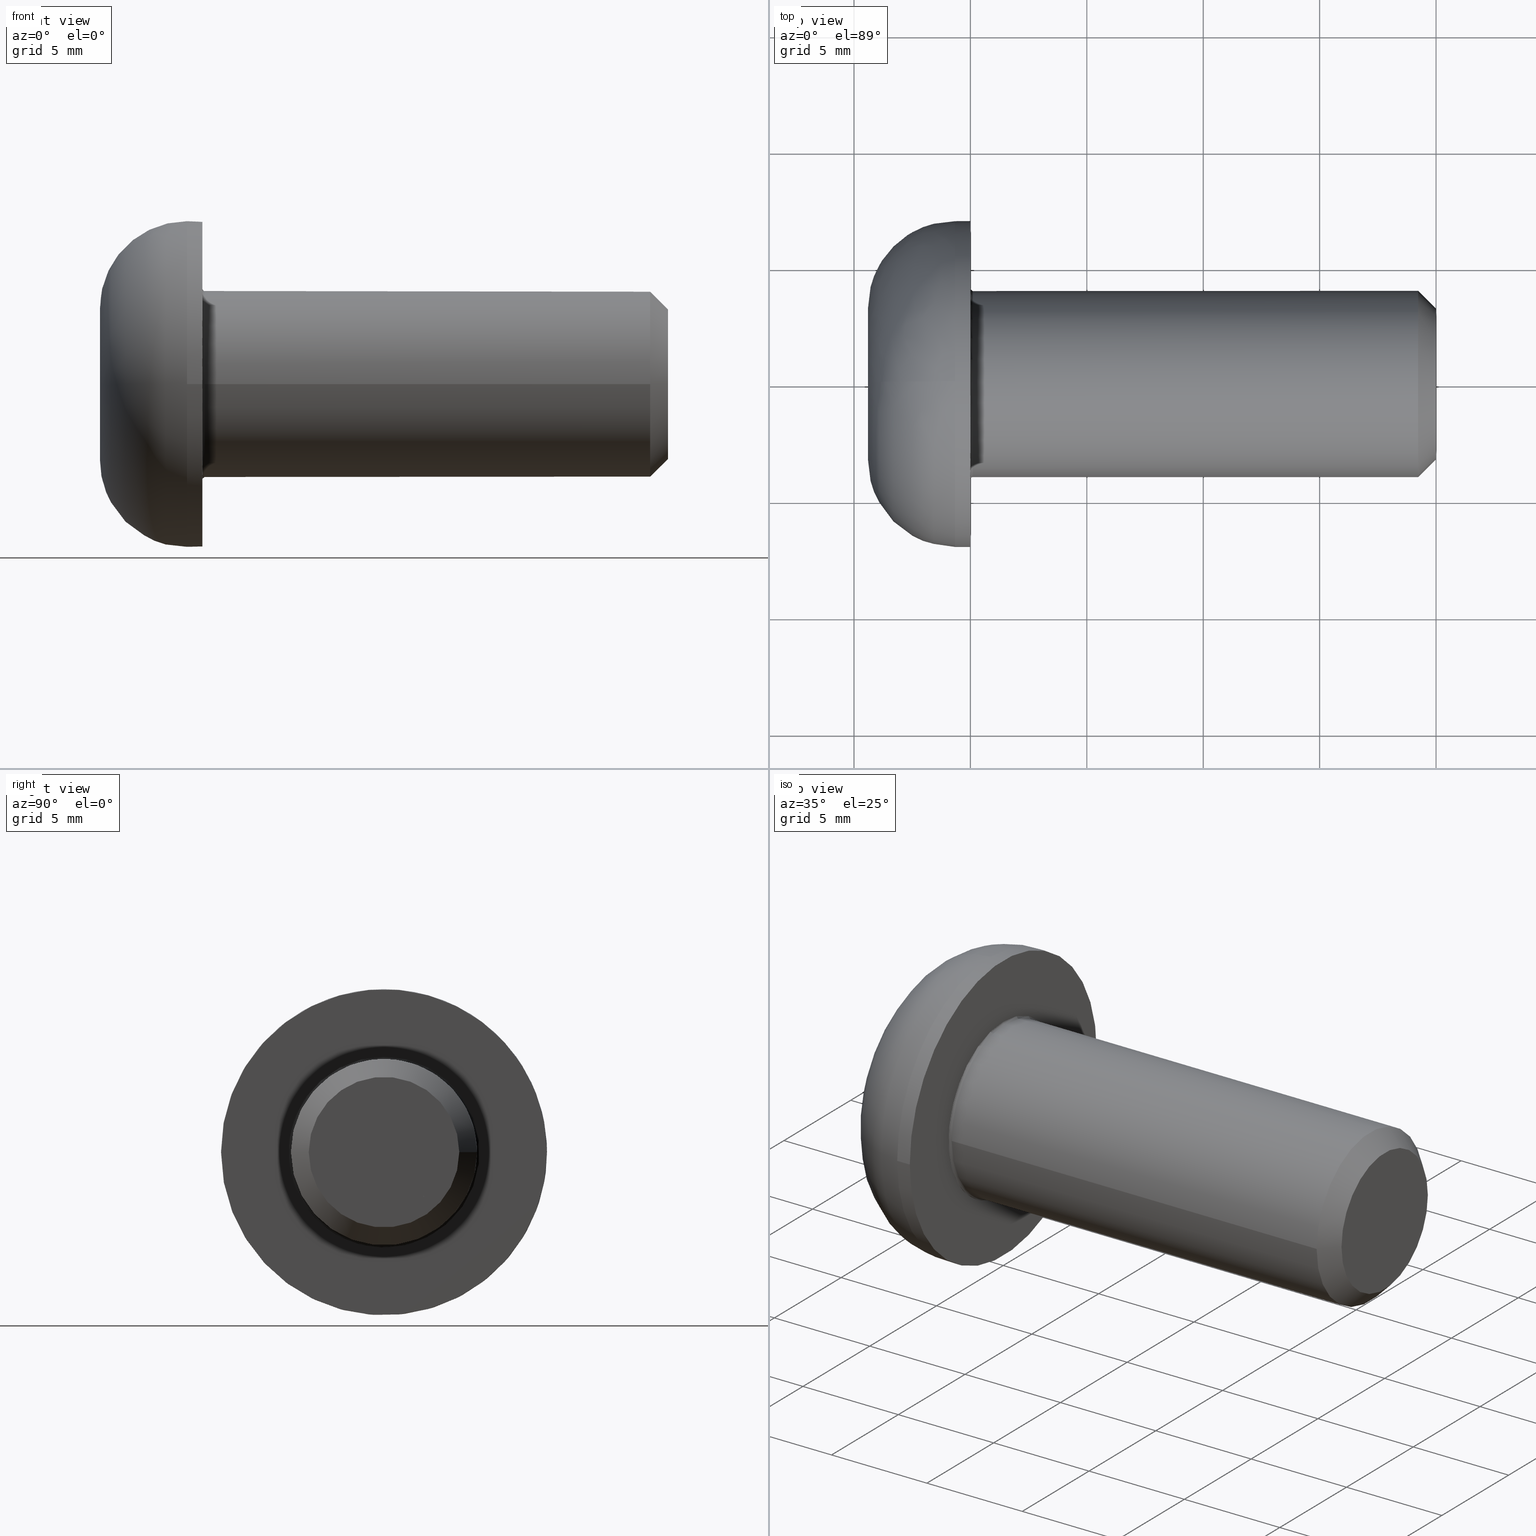
[diagram: canonical four-view strip — front | top / right | iso, engineering-drawing reading convention]
A machine part, canonical four-view strip (front | top / right | iso — engineering-drawing reading convention). The complete STEP part file that produces these views, byte-faithful:
ISO-10303-21;
HEADER;
/* Generated by software containing ST-Developer
 * from STEP Tools, Inc. (www.steptools.com) 
 */

FILE_DESCRIPTION(
/* description */ ('VITE TBEI 7380 10.9 8X20 ZN'),
/* implementation_level */ '2;1');

FILE_NAME(
/* name */ 
'C:\\Users\\tecnico7\\Desktop\\NUOVI DISEGNI 3D\\CVIBB0000048.stp',
/* time_stamp */ '2022-11-21T09:26:42+01:00',
/* author */ ('tecnico7'),
/* organization */ (''),
/* preprocessor_version */ 'ST-DEVELOPER v18.1',
/* originating_system */ 'Autodesk Inventor 2022',
/* authorisation */ '');

FILE_SCHEMA (('AUTOMOTIVE_DESIGN { 1 0 10303 214 3 1 1 }'));
ENDSEC;

DATA;
#10=MECHANICAL_DESIGN_GEOMETRIC_PRESENTATION_REPRESENTATION('',(#13),#496);
#11=SHAPE_REPRESENTATION_RELATIONSHIP('SRR','None',#503,#12);
#12=ADVANCED_BREP_SHAPE_REPRESENTATION('',(#14),#495);
#13=STYLED_ITEM('',(#512),#14);
#14=MANIFOLD_SOLID_BREP('Solid1',#259);
#15=(
BOUNDED_CURVE()
B_SPLINE_CURVE(2,(#453,#454,#455),.UNSPECIFIED.,.F.,.F.)
B_SPLINE_CURVE_WITH_KNOTS((3,3),(0.,0.292109034519483),.UNSPECIFIED.)
CURVE()
GEOMETRIC_REPRESENTATION_ITEM()
RATIONAL_B_SPLINE_CURVE((1.,1.15470053837925,1.))
REPRESENTATION_ITEM('')
);
#16=(
BOUNDED_CURVE()
B_SPLINE_CURVE(2,(#460,#461,#462),.UNSPECIFIED.,.F.,.F.)
B_SPLINE_CURVE_WITH_KNOTS((3,3),(0.,0.292109034519483),.UNSPECIFIED.)
CURVE()
GEOMETRIC_REPRESENTATION_ITEM()
RATIONAL_B_SPLINE_CURVE((1.,1.15470053837925,1.))
REPRESENTATION_ITEM('')
);
#17=(
BOUNDED_CURVE()
B_SPLINE_CURVE(2,(#466,#467,#468),.UNSPECIFIED.,.F.,.F.)
B_SPLINE_CURVE_WITH_KNOTS((3,3),(0.,0.292109034519483),.UNSPECIFIED.)
CURVE()
GEOMETRIC_REPRESENTATION_ITEM()
RATIONAL_B_SPLINE_CURVE((1.,1.15470053837925,1.))
REPRESENTATION_ITEM('')
);
#18=(
BOUNDED_CURVE()
B_SPLINE_CURVE(2,(#472,#473,#474),.UNSPECIFIED.,.F.,.F.)
B_SPLINE_CURVE_WITH_KNOTS((3,3),(0.,0.292109034519483),.UNSPECIFIED.)
CURVE()
GEOMETRIC_REPRESENTATION_ITEM()
RATIONAL_B_SPLINE_CURVE((1.,1.15470053837926,1.))
REPRESENTATION_ITEM('')
);
#19=(
BOUNDED_CURVE()
B_SPLINE_CURVE(2,(#478,#479,#480),.UNSPECIFIED.,.F.,.F.)
B_SPLINE_CURVE_WITH_KNOTS((3,3),(0.,0.146054517259742),.UNSPECIFIED.)
CURVE()
GEOMETRIC_REPRESENTATION_ITEM()
RATIONAL_B_SPLINE_CURVE((1.,1.07735026918963,1.07735026918963))
REPRESENTATION_ITEM('')
);
#20=(
BOUNDED_CURVE()
B_SPLINE_CURVE(2,(#483,#484,#485),.UNSPECIFIED.,.F.,.F.)
B_SPLINE_CURVE_WITH_KNOTS((3,3),(0.146054517259742,0.292109034519483),
 .UNSPECIFIED.)
CURVE()
GEOMETRIC_REPRESENTATION_ITEM()
RATIONAL_B_SPLINE_CURVE((1.07735026918963,1.07735026918963,1.))
REPRESENTATION_ITEM('')
);
#21=(
BOUNDED_CURVE()
B_SPLINE_CURVE(2,(#487,#488,#489),.UNSPECIFIED.,.F.,.F.)
B_SPLINE_CURVE_WITH_KNOTS((3,3),(0.,0.292109034519483),.UNSPECIFIED.)
CURVE()
GEOMETRIC_REPRESENTATION_ITEM()
RATIONAL_B_SPLINE_CURVE((1.,1.15470053837925,1.))
REPRESENTATION_ITEM('')
);
#22=(
BOUNDED_SURFACE()
B_SPLINE_SURFACE(2,2,((#401,#402,#403,#404,#405,#406,#407,#408,#409),(#410,
#411,#412,#413,#414,#415,#416,#417,#418),(#419,#420,#421,#422,#423,#424,
#425,#426,#427)),.UNSPECIFIED.,.F.,.T.,.F.)
B_SPLINE_SURFACE_WITH_KNOTS((3,3),(3,2,2,2,3),(-1.5707963267949,1.20300443014027E-17),
(-3.14159265358979,-1.5707963267949,0.,1.5707963267949,3.14159265358979),
 .UNSPECIFIED.)
GEOMETRIC_REPRESENTATION_ITEM()
RATIONAL_B_SPLINE_SURFACE(((1.,0.707106781186548,1.,0.707106781186548,1.,
0.707106781186548,1.,0.707106781186548,1.),(0.707106781186548,0.5,0.707106781186548,
0.5,0.707106781186548,0.5,0.707106781186548,0.5,0.707106781186548),(1.,
0.707106781186548,1.,0.707106781186548,1.,0.707106781186548,1.,0.707106781186548,
1.)))
REPRESENTATION_ITEM('')
SURFACE()
);
#23=CONICAL_SURFACE('',#292,3.61659375,0.785398163397448);
#24=CONICAL_SURFACE('',#307,1.44337567297406,1.0471975511966);
#25=FACE_BOUND('',#88,.T.);
#26=FACE_BOUND('',#93,.T.);
#27=PLANE('',#290);
#28=PLANE('',#294);
#29=PLANE('',#299);
#30=PLANE('',#301);
#31=PLANE('',#302);
#32=PLANE('',#303);
#33=PLANE('',#304);
#34=PLANE('',#305);
#35=PLANE('',#306);
#36=LINE('',#392,#52);
#37=LINE('',#399,#53);
#38=LINE('',#438,#54);
#39=LINE('',#440,#55);
#40=LINE('',#442,#56);
#41=LINE('',#444,#57);
#42=LINE('',#446,#58);
#43=LINE('',#447,#59);
#44=LINE('',#449,#60);
#45=LINE('',#456,#61);
#46=LINE('',#457,#62);
#47=LINE('',#463,#63);
#48=LINE('',#469,#64);
#49=LINE('',#475,#65);
#50=LINE('',#482,#66);
#51=LINE('',#492,#67);
#52=VECTOR('',#326,4.);
#53=VECTOR('',#335,3.61659375);
#54=VECTOR('',#348,10.);
#55=VECTOR('',#349,10.);
#56=VECTOR('',#350,10.);
#57=VECTOR('',#351,10.);
#58=VECTOR('',#352,10.);
#59=VECTOR('',#353,10.);
#60=VECTOR('',#356,7.);
#61=VECTOR('',#359,10.);
#62=VECTOR('',#360,10.);
#63=VECTOR('',#363,10.);
#64=VECTOR('',#366,10.);
#65=VECTOR('',#369,10.);
#66=VECTOR('',#372,10.);
#67=VECTOR('',#377,1.44337567297406);
#68=CYLINDRICAL_SURFACE('',#287,4.);
#69=CYLINDRICAL_SURFACE('',#300,7.);
#70=FACE_OUTER_BOUND('',#85,.T.);
#71=FACE_OUTER_BOUND('',#86,.T.);
#72=FACE_OUTER_BOUND('',#87,.T.);
#73=FACE_OUTER_BOUND('',#89,.T.);
#74=FACE_OUTER_BOUND('',#90,.T.);
#75=FACE_OUTER_BOUND('',#91,.T.);
#76=FACE_OUTER_BOUND('',#92,.T.);
#77=FACE_OUTER_BOUND('',#94,.T.);
#78=FACE_OUTER_BOUND('',#95,.T.);
#79=FACE_OUTER_BOUND('',#96,.T.);
#80=FACE_OUTER_BOUND('',#97,.T.);
#81=FACE_OUTER_BOUND('',#98,.T.);
#82=FACE_OUTER_BOUND('',#99,.T.);
#83=FACE_OUTER_BOUND('',#100,.T.);
#84=FACE_OUTER_BOUND('',#101,.T.);
#85=EDGE_LOOP('',(#173,#174,#175,#176,#177));
#86=EDGE_LOOP('',(#178,#179,#180,#181,#182,#183));
#87=EDGE_LOOP('',(#184));
#88=EDGE_LOOP('',(#185));
#89=EDGE_LOOP('',(#186,#187,#188,#189,#190));
#90=EDGE_LOOP('',(#191));
#91=EDGE_LOOP('',(#192,#193,#194,#195,#196));
#92=EDGE_LOOP('',(#197));
#93=EDGE_LOOP('',(#198,#199,#200,#201,#202,#203));
#94=EDGE_LOOP('',(#204,#205,#206,#207,#208));
#95=EDGE_LOOP('',(#209,#210,#211,#212));
#96=EDGE_LOOP('',(#213,#214,#215,#216));
#97=EDGE_LOOP('',(#217,#218,#219,#220));
#98=EDGE_LOOP('',(#221,#222,#223,#224));
#99=EDGE_LOOP('',(#225,#226,#227,#228,#229));
#100=EDGE_LOOP('',(#230,#231,#232,#233));
#101=EDGE_LOOP('',(#234,#235,#236,#237,#238,#239,#240,#241,#242));
#102=CIRCLE('',#283,4.1);
#103=CIRCLE('',#284,0.1);
#104=CIRCLE('',#285,4.);
#105=CIRCLE('',#286,4.);
#106=CIRCLE('',#288,4.);
#107=CIRCLE('',#289,4.);
#108=CIRCLE('',#291,7.);
#109=CIRCLE('',#293,3.2331875);
#110=CIRCLE('',#295,7.);
#111=CIRCLE('',#296,7.);
#112=CIRCLE('',#297,3.74);
#113=CIRCLE('',#298,3.26);
#114=VERTEX_POINT('',#380);
#115=VERTEX_POINT('',#382);
#116=VERTEX_POINT('',#384);
#117=VERTEX_POINT('',#388);
#118=VERTEX_POINT('',#389);
#119=VERTEX_POINT('',#394);
#120=VERTEX_POINT('',#397);
#121=VERTEX_POINT('',#428);
#122=VERTEX_POINT('',#429);
#123=VERTEX_POINT('',#432);
#124=VERTEX_POINT('',#436);
#125=VERTEX_POINT('',#437);
#126=VERTEX_POINT('',#439);
#127=VERTEX_POINT('',#441);
#128=VERTEX_POINT('',#443);
#129=VERTEX_POINT('',#445);
#130=VERTEX_POINT('',#451);
#131=VERTEX_POINT('',#452);
#132=VERTEX_POINT('',#459);
#133=VERTEX_POINT('',#465);
#134=VERTEX_POINT('',#471);
#135=VERTEX_POINT('',#477);
#136=VERTEX_POINT('',#481);
#137=VERTEX_POINT('',#491);
#138=EDGE_CURVE('',#114,#114,#102,.T.);
#139=EDGE_CURVE('',#114,#115,#103,.T.);
#140=EDGE_CURVE('',#115,#116,#104,.T.);
#141=EDGE_CURVE('',#116,#115,#105,.T.);
#142=EDGE_CURVE('',#117,#118,#106,.T.);
#143=EDGE_CURVE('',#118,#117,#107,.T.);
#144=EDGE_CURVE('',#118,#116,#36,.T.);
#145=EDGE_CURVE('',#119,#119,#108,.T.);
#146=EDGE_CURVE('',#120,#120,#109,.T.);
#147=EDGE_CURVE('',#120,#117,#37,.T.);
#148=EDGE_CURVE('',#121,#122,#110,.T.);
#149=EDGE_CURVE('',#122,#121,#111,.T.);
#150=EDGE_CURVE('',#121,#123,#112,.T.);
#151=EDGE_CURVE('',#123,#123,#113,.T.);
#152=EDGE_CURVE('',#124,#125,#38,.T.);
#153=EDGE_CURVE('',#125,#126,#39,.T.);
#154=EDGE_CURVE('',#126,#127,#40,.T.);
#155=EDGE_CURVE('',#127,#128,#41,.T.);
#156=EDGE_CURVE('',#128,#129,#42,.T.);
#157=EDGE_CURVE('',#129,#124,#43,.T.);
#158=EDGE_CURVE('',#119,#122,#44,.T.);
#159=EDGE_CURVE('',#130,#131,#15,.T.);
#160=EDGE_CURVE('',#130,#129,#45,.T.);
#161=EDGE_CURVE('',#131,#128,#46,.T.);
#162=EDGE_CURVE('',#132,#130,#16,.T.);
#163=EDGE_CURVE('',#132,#124,#47,.T.);
#164=EDGE_CURVE('',#133,#132,#17,.T.);
#165=EDGE_CURVE('',#133,#125,#48,.T.);
#166=EDGE_CURVE('',#134,#133,#18,.T.);
#167=EDGE_CURVE('',#126,#134,#49,.T.);
#168=EDGE_CURVE('',#131,#135,#19,.T.);
#169=EDGE_CURVE('',#136,#127,#50,.T.);
#170=EDGE_CURVE('',#135,#136,#20,.T.);
#171=EDGE_CURVE('',#136,#134,#21,.T.);
#172=EDGE_CURVE('',#137,#135,#51,.T.);
#173=ORIENTED_EDGE('',*,*,#138,.T.);
#174=ORIENTED_EDGE('',*,*,#139,.T.);
#175=ORIENTED_EDGE('',*,*,#140,.T.);
#176=ORIENTED_EDGE('',*,*,#141,.T.);
#177=ORIENTED_EDGE('',*,*,#139,.F.);
#178=ORIENTED_EDGE('',*,*,#142,.F.);
#179=ORIENTED_EDGE('',*,*,#143,.F.);
#180=ORIENTED_EDGE('',*,*,#144,.T.);
#181=ORIENTED_EDGE('',*,*,#140,.F.);
#182=ORIENTED_EDGE('',*,*,#141,.F.);
#183=ORIENTED_EDGE('',*,*,#144,.F.);
#184=ORIENTED_EDGE('',*,*,#145,.T.);
#185=ORIENTED_EDGE('',*,*,#138,.F.);
#186=ORIENTED_EDGE('',*,*,#146,.T.);
#187=ORIENTED_EDGE('',*,*,#147,.T.);
#188=ORIENTED_EDGE('',*,*,#142,.T.);
#189=ORIENTED_EDGE('',*,*,#143,.T.);
#190=ORIENTED_EDGE('',*,*,#147,.F.);
#191=ORIENTED_EDGE('',*,*,#146,.F.);
#192=ORIENTED_EDGE('',*,*,#148,.T.);
#193=ORIENTED_EDGE('',*,*,#149,.T.);
#194=ORIENTED_EDGE('',*,*,#150,.T.);
#195=ORIENTED_EDGE('',*,*,#151,.T.);
#196=ORIENTED_EDGE('',*,*,#150,.F.);
#197=ORIENTED_EDGE('',*,*,#151,.F.);
#198=ORIENTED_EDGE('',*,*,#152,.T.);
#199=ORIENTED_EDGE('',*,*,#153,.T.);
#200=ORIENTED_EDGE('',*,*,#154,.T.);
#201=ORIENTED_EDGE('',*,*,#155,.T.);
#202=ORIENTED_EDGE('',*,*,#156,.T.);
#203=ORIENTED_EDGE('',*,*,#157,.T.);
#204=ORIENTED_EDGE('',*,*,#145,.F.);
#205=ORIENTED_EDGE('',*,*,#158,.T.);
#206=ORIENTED_EDGE('',*,*,#148,.F.);
#207=ORIENTED_EDGE('',*,*,#149,.F.);
#208=ORIENTED_EDGE('',*,*,#158,.F.);
#209=ORIENTED_EDGE('',*,*,#159,.F.);
#210=ORIENTED_EDGE('',*,*,#160,.T.);
#211=ORIENTED_EDGE('',*,*,#156,.F.);
#212=ORIENTED_EDGE('',*,*,#161,.F.);
#213=ORIENTED_EDGE('',*,*,#162,.F.);
#214=ORIENTED_EDGE('',*,*,#163,.T.);
#215=ORIENTED_EDGE('',*,*,#157,.F.);
#216=ORIENTED_EDGE('',*,*,#160,.F.);
#217=ORIENTED_EDGE('',*,*,#164,.F.);
#218=ORIENTED_EDGE('',*,*,#165,.T.);
#219=ORIENTED_EDGE('',*,*,#152,.F.);
#220=ORIENTED_EDGE('',*,*,#163,.F.);
#221=ORIENTED_EDGE('',*,*,#166,.F.);
#222=ORIENTED_EDGE('',*,*,#167,.F.);
#223=ORIENTED_EDGE('',*,*,#153,.F.);
#224=ORIENTED_EDGE('',*,*,#165,.F.);
#225=ORIENTED_EDGE('',*,*,#168,.F.);
#226=ORIENTED_EDGE('',*,*,#161,.T.);
#227=ORIENTED_EDGE('',*,*,#155,.F.);
#228=ORIENTED_EDGE('',*,*,#169,.F.);
#229=ORIENTED_EDGE('',*,*,#170,.F.);
#230=ORIENTED_EDGE('',*,*,#171,.F.);
#231=ORIENTED_EDGE('',*,*,#169,.T.);
#232=ORIENTED_EDGE('',*,*,#154,.F.);
#233=ORIENTED_EDGE('',*,*,#167,.T.);
#234=ORIENTED_EDGE('',*,*,#172,.T.);
#235=ORIENTED_EDGE('',*,*,#170,.T.);
#236=ORIENTED_EDGE('',*,*,#171,.T.);
#237=ORIENTED_EDGE('',*,*,#166,.T.);
#238=ORIENTED_EDGE('',*,*,#164,.T.);
#239=ORIENTED_EDGE('',*,*,#162,.T.);
#240=ORIENTED_EDGE('',*,*,#159,.T.);
#241=ORIENTED_EDGE('',*,*,#168,.T.);
#242=ORIENTED_EDGE('',*,*,#172,.F.);
#243=TOROIDAL_SURFACE('',#282,4.1,0.1);
#244=ADVANCED_FACE('',(#70),#243,.F.);
#245=ADVANCED_FACE('',(#71),#68,.T.);
#246=ADVANCED_FACE('',(#72,#25),#27,.T.);
#247=ADVANCED_FACE('',(#73),#23,.T.);
#248=ADVANCED_FACE('',(#74),#28,.T.);
#249=ADVANCED_FACE('',(#75),#22,.F.);
#250=ADVANCED_FACE('',(#76,#26),#29,.T.);
#251=ADVANCED_FACE('',(#77),#69,.T.);
#252=ADVANCED_FACE('',(#78),#30,.F.);
#253=ADVANCED_FACE('',(#79),#31,.F.);
#254=ADVANCED_FACE('',(#80),#32,.F.);
#255=ADVANCED_FACE('',(#81),#33,.F.);
#256=ADVANCED_FACE('',(#82),#34,.F.);
#257=ADVANCED_FACE('',(#83),#35,.F.);
#258=ADVANCED_FACE('',(#84),#24,.F.);
#259=CLOSED_SHELL('',(#244,#245,#246,#247,#248,#249,#250,#251,#252,#253,
#254,#255,#256,#257,#258));
#260=DERIVED_UNIT_ELEMENT(#263,1.);
#261=DERIVED_UNIT_ELEMENT(#498,-3.);
#262=DIMENSIONAL_EXPONENTS(1.,0.,0.,0.,0.,0.,0.);
#263=(
CONVERSION_BASED_UNIT('gram',#265)
MASS_UNIT()
NAMED_UNIT(#262)
);
#264=(
MASS_UNIT()
NAMED_UNIT(*)
SI_UNIT(.KILO.,.GRAM.)
);
#265=MASS_MEASURE_WITH_UNIT(MASS_MEASURE(0.001),#264);
#266=DERIVED_UNIT((#260,#261));
#267=MEASURE_REPRESENTATION_ITEM('density measure',
POSITIVE_RATIO_MEASURE(6.E-5),#266);
#268=PROPERTY_DEFINITION_REPRESENTATION(#273,#270);
#269=PROPERTY_DEFINITION_REPRESENTATION(#274,#271);
#270=REPRESENTATION('material name',(#272),#495);
#271=REPRESENTATION('density',(#267),#495);
#272=DESCRIPTIVE_REPRESENTATION_ITEM('Acciaio, Dolce','Acciaio, Dolce');
#273=PROPERTY_DEFINITION('material property','material name',#505);
#274=PROPERTY_DEFINITION('material property','density of part',#505);
#275=DATE_TIME_ROLE('creation_date');
#276=APPLIED_DATE_AND_TIME_ASSIGNMENT(#277,#275,(#505));
#277=DATE_AND_TIME(#278,#279);
#278=CALENDAR_DATE(2015,5,3);
#279=LOCAL_TIME(0,0,0.,#280);
#280=COORDINATED_UNIVERSAL_TIME_OFFSET(0,0,.BEHIND.);
#281=AXIS2_PLACEMENT_3D('placement',#378,#308,#309);
#282=AXIS2_PLACEMENT_3D('',#379,#310,#311);
#283=AXIS2_PLACEMENT_3D('',#381,#312,#313);
#284=AXIS2_PLACEMENT_3D('',#383,#314,#315);
#285=AXIS2_PLACEMENT_3D('',#385,#316,#317);
#286=AXIS2_PLACEMENT_3D('',#386,#318,#319);
#287=AXIS2_PLACEMENT_3D('',#387,#320,#321);
#288=AXIS2_PLACEMENT_3D('',#390,#322,#323);
#289=AXIS2_PLACEMENT_3D('',#391,#324,#325);
#290=AXIS2_PLACEMENT_3D('',#393,#327,#328);
#291=AXIS2_PLACEMENT_3D('',#395,#329,#330);
#292=AXIS2_PLACEMENT_3D('',#396,#331,#332);
#293=AXIS2_PLACEMENT_3D('',#398,#333,#334);
#294=AXIS2_PLACEMENT_3D('',#400,#336,#337);
#295=AXIS2_PLACEMENT_3D('',#430,#338,#339);
#296=AXIS2_PLACEMENT_3D('',#431,#340,#341);
#297=AXIS2_PLACEMENT_3D('',#433,#342,#343);
#298=AXIS2_PLACEMENT_3D('',#434,#344,#345);
#299=AXIS2_PLACEMENT_3D('',#435,#346,#347);
#300=AXIS2_PLACEMENT_3D('',#448,#354,#355);
#301=AXIS2_PLACEMENT_3D('',#450,#357,#358);
#302=AXIS2_PLACEMENT_3D('',#458,#361,#362);
#303=AXIS2_PLACEMENT_3D('',#464,#364,#365);
#304=AXIS2_PLACEMENT_3D('',#470,#367,#368);
#305=AXIS2_PLACEMENT_3D('',#476,#370,#371);
#306=AXIS2_PLACEMENT_3D('',#486,#373,#374);
#307=AXIS2_PLACEMENT_3D('',#490,#375,#376);
#308=DIRECTION('axis',(0.,0.,1.));
#309=DIRECTION('refdir',(1.,0.,0.));
#310=DIRECTION('center_axis',(1.,5.98373334115326E-18,0.));
#311=DIRECTION('ref_axis',(0.,0.,-1.));
#312=DIRECTION('center_axis',(1.,5.98373334115326E-18,0.));
#313=DIRECTION('ref_axis',(5.98373334115326E-18,-1.,1.22464679914735E-16));
#314=DIRECTION('center_axis',(5.98373334115326E-18,-1.,-1.22464679914735E-16));
#315=DIRECTION('ref_axis',(0.,-1.22464679914735E-16,1.));
#316=DIRECTION('center_axis',(-1.,-5.98373334115326E-18,0.));
#317=DIRECTION('ref_axis',(4.33680868994202E-18,-1.,1.22464679914735E-16));
#318=DIRECTION('center_axis',(-1.,-5.98373334115326E-18,0.));
#319=DIRECTION('ref_axis',(4.33680868994202E-18,-1.,1.22464679914735E-16));
#320=DIRECTION('center_axis',(1.,5.98373334115326E-18,0.));
#321=DIRECTION('ref_axis',(0.,1.,0.));
#322=DIRECTION('center_axis',(1.,5.98373334115326E-18,0.));
#323=DIRECTION('ref_axis',(0.,-1.,0.));
#324=DIRECTION('center_axis',(1.,5.98373334115326E-18,0.));
#325=DIRECTION('ref_axis',(0.,-1.,0.));
#326=DIRECTION('',(-1.,-5.98373334115326E-18,0.));
#327=DIRECTION('center_axis',(1.,5.98373334115326E-18,0.));
#328=DIRECTION('ref_axis',(0.,0.,-1.));
#329=DIRECTION('center_axis',(1.,5.98373334115326E-18,0.));
#330=DIRECTION('ref_axis',(0.,1.,0.));
#331=DIRECTION('center_axis',(-1.,-5.98373334115326E-18,0.));
#332=DIRECTION('ref_axis',(2.67468966371326E-18,-1.,0.));
#333=DIRECTION('center_axis',(-1.,-5.98373334115326E-18,0.));
#334=DIRECTION('ref_axis',(5.98373334115326E-18,-1.,0.));
#335=DIRECTION('',(-0.707106781186548,0.707106781186547,8.65956056235493E-17));
#336=DIRECTION('center_axis',(1.,5.98373334115326E-18,0.));
#337=DIRECTION('ref_axis',(0.,0.,-1.));
#338=DIRECTION('center_axis',(-1.,-5.98373334115326E-18,0.));
#339=DIRECTION('ref_axis',(0.,-1.,1.22464679914735E-16));
#340=DIRECTION('center_axis',(-1.,-5.98373334115326E-18,0.));
#341=DIRECTION('ref_axis',(0.,-1.,1.22464679914735E-16));
#342=DIRECTION('center_axis',(5.98373334115326E-18,-1.,-1.22464679914735E-16));
#343=DIRECTION('ref_axis',(0.,-1.22464679914735E-16,1.));
#344=DIRECTION('center_axis',(1.,5.98373334115326E-18,0.));
#345=DIRECTION('ref_axis',(5.98373334115326E-18,-1.,1.22464679914735E-16));
#346=DIRECTION('center_axis',(-1.,-5.98373334115326E-18,0.));
#347=DIRECTION('ref_axis',(0.,0.,1.));
#348=DIRECTION('',(-5.75324797015349E-33,9.61481343191782E-16,1.));
#349=DIRECTION('',(5.18206508291066E-18,-0.866025403784438,0.5));
#350=DIRECTION('',(5.18206508291066E-18,-0.866025403784439,-0.5));
#351=DIRECTION('',(5.75324797015348E-34,-9.61481343191782E-17,-1.));
#352=DIRECTION('',(-5.18206508291066E-18,0.866025403784439,-0.5));
#353=DIRECTION('',(-5.18206508291066E-18,0.866025403784439,0.5));
#354=DIRECTION('center_axis',(1.,5.98373334115326E-18,0.));
#355=DIRECTION('ref_axis',(0.,1.,0.));
#356=DIRECTION('',(-1.,-5.98373334115326E-18,0.));
#357=DIRECTION('center_axis',(2.99186667057663E-18,-0.5,-0.866025403784439));
#358=DIRECTION('ref_axis',(-1.,0.,-3.45471005527377E-18));
#359=DIRECTION('',(-1.,-5.98373334115326E-18,0.));
#360=DIRECTION('',(-1.,-5.98373334115326E-18,0.));
#361=DIRECTION('center_axis',(-2.99186667057663E-18,0.5,-0.866025403784439));
#362=DIRECTION('ref_axis',(-1.,0.,3.45471005527377E-18));
#363=DIRECTION('',(-1.,-5.98373334115326E-18,0.));
#364=DIRECTION('center_axis',(-5.98373334115326E-18,1.,-9.61481343191782E-16));
#365=DIRECTION('ref_axis',(0.,9.61481343191782E-16,1.));
#366=DIRECTION('',(-1.,-5.98373334115326E-18,0.));
#367=DIRECTION('center_axis',(-2.99186667057663E-18,0.5,0.866025403784438));
#368=DIRECTION('ref_axis',(1.,0.,3.45471005527378E-18));
#369=DIRECTION('',(1.,5.98373334115326E-18,0.));
#370=DIRECTION('center_axis',(5.98373334115326E-18,-1.,9.61481343191782E-17));
#371=DIRECTION('ref_axis',(0.,-9.61481343191782E-17,-1.));
#372=DIRECTION('',(-1.,-5.98373334115326E-18,0.));
#373=DIRECTION('center_axis',(2.99186667057663E-18,-0.5,0.866025403784439));
#374=DIRECTION('ref_axis',(1.,0.,-3.45471005527377E-18));
#375=DIRECTION('center_axis',(-1.,-5.98373334115326E-18,0.));
#376=DIRECTION('ref_axis',(0.,1.,0.));
#377=DIRECTION('',(-0.499999999999999,-0.866025403784439,-1.06057523872491E-16));
#378=CARTESIAN_POINT('',(0.,0.,0.));
#379=CARTESIAN_POINT('Origin',(0.100000000000002,-1.1907629348895E-16,0.));
#380=CARTESIAN_POINT('',(2.25514051876985E-15,-6.2177985447348E-16,4.1));
#381=CARTESIAN_POINT('Origin',(2.25514051876985E-15,-1.19674666823065E-16,
0.));
#382=CARTESIAN_POINT('',(0.100000000000002,-6.08935013147891E-16,4.));
#383=CARTESIAN_POINT('Origin',(0.100000000000002,-6.21181481139365E-16,
4.1));
#384=CARTESIAN_POINT('',(0.100000000000002,-4.,-4.89858719658941E-16));
#385=CARTESIAN_POINT('Origin',(0.100000000000002,-1.1907629348895E-16,0.));
#386=CARTESIAN_POINT('Origin',(0.100000000000002,-1.1907629348895E-16,0.));
#387=CARTESIAN_POINT('Origin',(15.25,-2.8422733370478E-17,0.));
#388=CARTESIAN_POINT('',(19.2331875,4.,4.89858719658941E-16));
#389=CARTESIAN_POINT('',(19.2331875,-4.,-4.89858719658941E-16));
#390=CARTESIAN_POINT('Origin',(19.2331875,-4.58840152266308E-18,0.));
#391=CARTESIAN_POINT('Origin',(19.2331875,-4.58840152266308E-18,0.));
#392=CARTESIAN_POINT('',(15.25,-4.,-4.89858719658941E-16));
#393=CARTESIAN_POINT('Origin',(2.22044604925031E-15,5.5,0.));
#394=CARTESIAN_POINT('',(2.22044604925031E-15,-7.,-8.57252759403147E-16));
#395=CARTESIAN_POINT('Origin',(2.22044604925031E-15,-1.19674666823065E-16,
0.));
#396=CARTESIAN_POINT('Origin',(19.61659375,-2.29420076133154E-18,0.));
#397=CARTESIAN_POINT('',(20.,3.2331875,-3.95951272291823E-16));
#398=CARTESIAN_POINT('Origin',(20.,2.88889491658085E-33,0.));
#399=CARTESIAN_POINT('',(19.61659375,3.61659375,4.42904995975382E-16));
#400=CARTESIAN_POINT('Origin',(20.,2.,0.));
#401=CARTESIAN_POINT('Ctrl Pts',(-4.4,-1.46003093524139E-16,3.26));
#402=CARTESIAN_POINT('Ctrl Pts',(-4.4,-3.26,3.26));
#403=CARTESIAN_POINT('Ctrl Pts',(-4.4,-3.26,0.));
#404=CARTESIAN_POINT('Ctrl Pts',(-4.4,-3.26,-3.26));
#405=CARTESIAN_POINT('Ctrl Pts',(-4.4,-1.46003093524139E-16,-3.26));
#406=CARTESIAN_POINT('Ctrl Pts',(-4.4,3.26,-3.26));
#407=CARTESIAN_POINT('Ctrl Pts',(-4.4,3.26,0.));
#408=CARTESIAN_POINT('Ctrl Pts',(-4.4,3.26,3.26));
#409=CARTESIAN_POINT('Ctrl Pts',(-4.4,-1.46003093524139E-16,3.26));
#410=CARTESIAN_POINT('Ctrl Pts',(-4.4,-1.46003093524139E-16,7.));
#411=CARTESIAN_POINT('Ctrl Pts',(-4.4,-7.,7.));
#412=CARTESIAN_POINT('Ctrl Pts',(-4.4,-7.,0.));
#413=CARTESIAN_POINT('Ctrl Pts',(-4.4,-7.,-7.));
#414=CARTESIAN_POINT('Ctrl Pts',(-4.4,-1.46003093524139E-16,-7.));
#415=CARTESIAN_POINT('Ctrl Pts',(-4.4,7.,-7.));
#416=CARTESIAN_POINT('Ctrl Pts',(-4.4,7.,0.));
#417=CARTESIAN_POINT('Ctrl Pts',(-4.4,7.,7.));
#418=CARTESIAN_POINT('Ctrl Pts',(-4.4,-1.46003093524139E-16,7.));
#419=CARTESIAN_POINT('Ctrl Pts',(-0.659999999999995,-1.23623930828226E-16,
7.));
#420=CARTESIAN_POINT('Ctrl Pts',(-0.659999999999995,-7.,7.));
#421=CARTESIAN_POINT('Ctrl Pts',(-0.659999999999995,-7.,0.));
#422=CARTESIAN_POINT('Ctrl Pts',(-0.659999999999995,-7.,-7.));
#423=CARTESIAN_POINT('Ctrl Pts',(-0.659999999999995,-1.23623930828226E-16,
-7.));
#424=CARTESIAN_POINT('Ctrl Pts',(-0.659999999999995,7.,-7.));
#425=CARTESIAN_POINT('Ctrl Pts',(-0.659999999999995,7.,0.));
#426=CARTESIAN_POINT('Ctrl Pts',(-0.659999999999995,7.,7.));
#427=CARTESIAN_POINT('Ctrl Pts',(-0.659999999999995,-1.23623930828226E-16,
7.));
#428=CARTESIAN_POINT('',(-0.659999999999995,-9.80876690231374E-16,7.));
#429=CARTESIAN_POINT('',(-0.659999999999995,-7.,-8.57252759403147E-16));
#430=CARTESIAN_POINT('Origin',(-0.659999999999995,-1.23623930828226E-16,
0.));
#431=CARTESIAN_POINT('Origin',(-0.659999999999995,-1.23623930828226E-16,
0.));
#432=CARTESIAN_POINT('',(-4.4,-5.45237950046177E-16,3.26));
#433=CARTESIAN_POINT('Origin',(-0.659999999999995,-5.22858787350264E-16,
3.26));
#434=CARTESIAN_POINT('Origin',(-4.4,-1.46003093524139E-16,0.));
#435=CARTESIAN_POINT('Origin',(-4.4,4.94337567297407,0.));
#436=CARTESIAN_POINT('',(-4.4,2.5,-1.44337567297407));
#437=CARTESIAN_POINT('',(-4.4,2.5,1.44337567297406));
#438=CARTESIAN_POINT('',(-4.4,2.5,0.721687836487029));
#439=CARTESIAN_POINT('',(-4.4,2.07521986050829E-16,2.88675134594813));
#440=CARTESIAN_POINT('',(-4.4,0.625,2.52590742770461));
#441=CARTESIAN_POINT('',(-4.4,-2.5,1.44337567297406));
#442=CARTESIAN_POINT('',(-4.4,-1.875,1.80421959121758));
#443=CARTESIAN_POINT('',(-4.4,-2.5,-1.44337567297406));
#444=CARTESIAN_POINT('',(-4.4,-2.5,-0.721687836487032));
#445=CARTESIAN_POINT('',(-4.4,-4.94147952424845E-16,-2.88675134594813));
#446=CARTESIAN_POINT('',(-4.4,-0.625000000000001,-2.52590742770461));
#447=CARTESIAN_POINT('',(-4.4,1.875,-1.80421959121758));
#448=CARTESIAN_POINT('Origin',(-2.2,-1.32838880173602E-16,0.));
#449=CARTESIAN_POINT('',(-2.2,-7.,-8.57252759403147E-16));
#450=CARTESIAN_POINT('Origin',(-4.4,-4.94147952424845E-16,-2.88675134594813));
#451=CARTESIAN_POINT('',(-1.79999999999999,-9.55887439860013E-16,-2.88675134594813));
#452=CARTESIAN_POINT('',(-1.79999999999999,-2.5,-1.44337567297406));
#453=CARTESIAN_POINT('Ctrl Pts',(-1.79999999999999,1.41370381838279E-14,
-2.88675134594814));
#454=CARTESIAN_POINT('Ctrl Pts',(-1.38333333333332,-1.25,-2.1650635094611));
#455=CARTESIAN_POINT('Ctrl Pts',(-1.79999999999999,-2.50000000000001,-1.44337567297406));
#456=CARTESIAN_POINT('',(-3.1,-1.2490009027033E-15,-2.88675134594813));
#457=CARTESIAN_POINT('',(-3.1,-2.5,-1.44337567297406));
#458=CARTESIAN_POINT('Origin',(-4.4,2.5,-1.44337567297407));
#459=CARTESIAN_POINT('',(-1.79999999999999,2.5,-1.44337567297407));
#460=CARTESIAN_POINT('Ctrl Pts',(-1.79999999999999,2.50000000000001,-1.44337567297406));
#461=CARTESIAN_POINT('Ctrl Pts',(-1.38333333333332,1.25,-2.1650635094611));
#462=CARTESIAN_POINT('Ctrl Pts',(-1.79999999999999,-1.50063162125826E-14,
-2.88675134594814));
#463=CARTESIAN_POINT('',(-3.1,2.5,-1.44337567297407));
#464=CARTESIAN_POINT('Origin',(-4.4,2.5,1.44337567297406));
#465=CARTESIAN_POINT('',(-1.79999999999999,2.5,1.44337567297406));
#466=CARTESIAN_POINT('Ctrl Pts',(-1.79999999999999,2.5,1.44337567297408));
#467=CARTESIAN_POINT('Ctrl Pts',(-1.38333333333332,2.5,-2.63677968348475E-15));
#468=CARTESIAN_POINT('Ctrl Pts',(-1.79999999999999,2.5,-1.44337567297408));
#469=CARTESIAN_POINT('',(-3.1,2.5,1.44337567297406));
#470=CARTESIAN_POINT('Origin',(-4.4,-2.68544691926043E-17,2.88675134594813));
#471=CARTESIAN_POINT('',(-1.79999999999999,-8.17109561781869E-16,2.88675134594813));
#472=CARTESIAN_POINT('Ctrl Pts',(-1.79999999999999,-1.45899825783481E-14,
2.88675134594814));
#473=CARTESIAN_POINT('Ctrl Pts',(-1.38333333333332,1.25,2.16506350946109));
#474=CARTESIAN_POINT('Ctrl Pts',(-1.79999999999999,2.50000000000002,1.44337567297405));
#475=CARTESIAN_POINT('',(-3.1,-5.55111512312578E-16,2.88675134594813));
#476=CARTESIAN_POINT('Origin',(-4.4,-2.5,-1.44337567297406));
#477=CARTESIAN_POINT('',(-1.57670900630739,-2.5,-3.14098443297062E-16));
#478=CARTESIAN_POINT('Ctrl Pts',(-1.79999999999999,-2.5,-1.44337567297408));
#479=CARTESIAN_POINT('Ctrl Pts',(-1.57670900630739,-2.5,-0.669872981077814));
#480=CARTESIAN_POINT('Ctrl Pts',(-1.57670900630739,-2.5,-3.22035186807286E-16));
#481=CARTESIAN_POINT('',(-1.79999999999999,-2.5,1.44337567297407));
#482=CARTESIAN_POINT('',(-3.1,-2.5,1.44337567297406));
#483=CARTESIAN_POINT('Ctrl Pts',(-1.57670900630739,-2.5,-3.22035186807286E-16));
#484=CARTESIAN_POINT('Ctrl Pts',(-1.57670900630739,-2.5,0.669872981077814));
#485=CARTESIAN_POINT('Ctrl Pts',(-1.79999999999999,-2.5,1.44337567297408));
#486=CARTESIAN_POINT('Origin',(-4.4,-2.5,1.44337567297406));
#487=CARTESIAN_POINT('Ctrl Pts',(-1.79999999999999,-2.50000000000002,1.44337567297406));
#488=CARTESIAN_POINT('Ctrl Pts',(-1.38333333333332,-1.25,2.1650635094611));
#489=CARTESIAN_POINT('Ctrl Pts',(-1.79999999999999,1.53860390865312E-14,
2.88675134594814));
#490=CARTESIAN_POINT('Origin',(-0.966666666666658,-1.2545894238618E-16,
0.));
#491=CARTESIAN_POINT('',(-0.133333333333326,-1.20472497935219E-16,0.));
#492=CARTESIAN_POINT('',(-0.966666666666658,-1.44337567297406,-1.76762539787484E-16));
#493=UNCERTAINTY_MEASURE_WITH_UNIT(LENGTH_MEASURE(0.01),#497,
'DISTANCE_ACCURACY_VALUE',
'Maximum model space distance between geometric entities at asserted c
onnectivities');
#494=UNCERTAINTY_MEASURE_WITH_UNIT(LENGTH_MEASURE(0.01),#497,
'DISTANCE_ACCURACY_VALUE',
'Maximum model space distance between geometric entities at asserted c
onnectivities');
#495=(
GEOMETRIC_REPRESENTATION_CONTEXT(3)
GLOBAL_UNCERTAINTY_ASSIGNED_CONTEXT((#493))
GLOBAL_UNIT_ASSIGNED_CONTEXT((#497,#499,#500))
REPRESENTATION_CONTEXT('','3D')
);
#496=(
GEOMETRIC_REPRESENTATION_CONTEXT(3)
GLOBAL_UNCERTAINTY_ASSIGNED_CONTEXT((#494))
GLOBAL_UNIT_ASSIGNED_CONTEXT((#497,#499,#500))
REPRESENTATION_CONTEXT('','3D')
);
#497=(
LENGTH_UNIT()
NAMED_UNIT(*)
SI_UNIT(.MILLI.,.METRE.)
);
#498=(
LENGTH_UNIT()
NAMED_UNIT(*)
SI_UNIT(.CENTI.,.METRE.)
);
#499=(
NAMED_UNIT(*)
PLANE_ANGLE_UNIT()
SI_UNIT($,.RADIAN.)
);
#500=(
NAMED_UNIT(*)
SI_UNIT($,.STERADIAN.)
SOLID_ANGLE_UNIT()
);
#501=SHAPE_DEFINITION_REPRESENTATION(#502,#503);
#502=PRODUCT_DEFINITION_SHAPE('',$,#505);
#503=SHAPE_REPRESENTATION('',(#281),#495);
#504=PRODUCT_DEFINITION_CONTEXT('part definition',#509,'design');
#505=PRODUCT_DEFINITION('CVIBB0000048','CVIBB0000048',#506,#504);
#506=PRODUCT_DEFINITION_FORMATION('A',$,#511);
#507=PRODUCT_RELATED_PRODUCT_CATEGORY('CVIBB0000048','CVIBB0000048',(#511));
#508=APPLICATION_PROTOCOL_DEFINITION('international standard',
'automotive_design',2009,#509);
#509=APPLICATION_CONTEXT(
'Core Data for Automotive Mechanical Design Process');
#510=PRODUCT_CONTEXT('part definition',#509,'mechanical');
#511=PRODUCT('CVIBB0000048','CVIBB0000048',
'VITE TBEI 7380 10.9 8X20 ZN',(#510));
#512=PRESENTATION_STYLE_ASSIGNMENT((#513));
#513=SURFACE_STYLE_USAGE(.BOTH.,#516);
#514=SURFACE_STYLE_RENDERING_WITH_PROPERTIES($,#520,(#515));
#515=SURFACE_STYLE_TRANSPARENT(0.);
#516=SURFACE_SIDE_STYLE('',(#517,#514));
#517=SURFACE_STYLE_FILL_AREA(#518);
#518=FILL_AREA_STYLE('',(#519));
#519=FILL_AREA_STYLE_COLOUR('',#520);
#520=COLOUR_RGB('',0.87843137254902,0.874509803921569,0.858823529411765);
ENDSEC;
END-ISO-10303-21;
